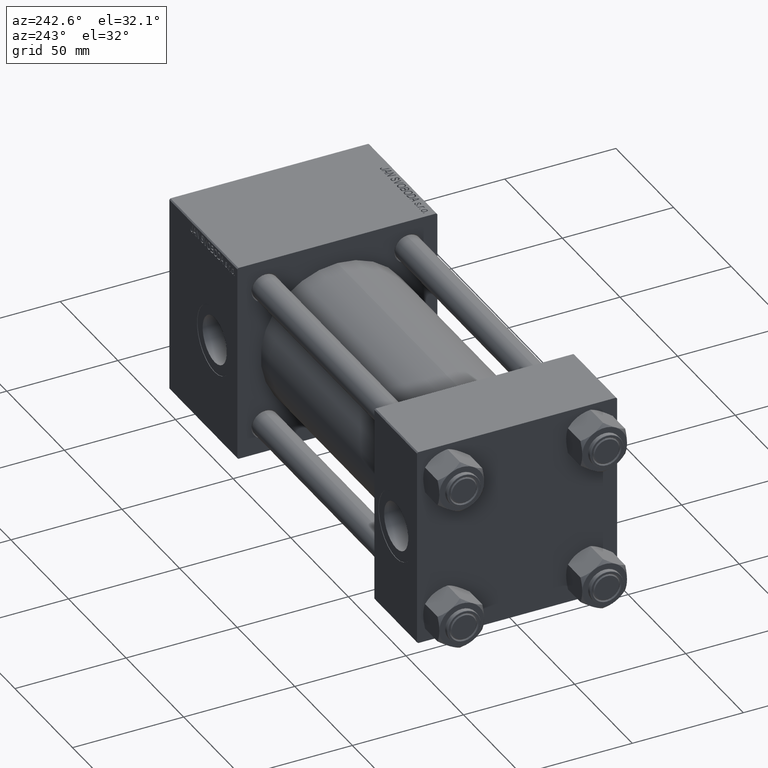
[diagram: clean part render]
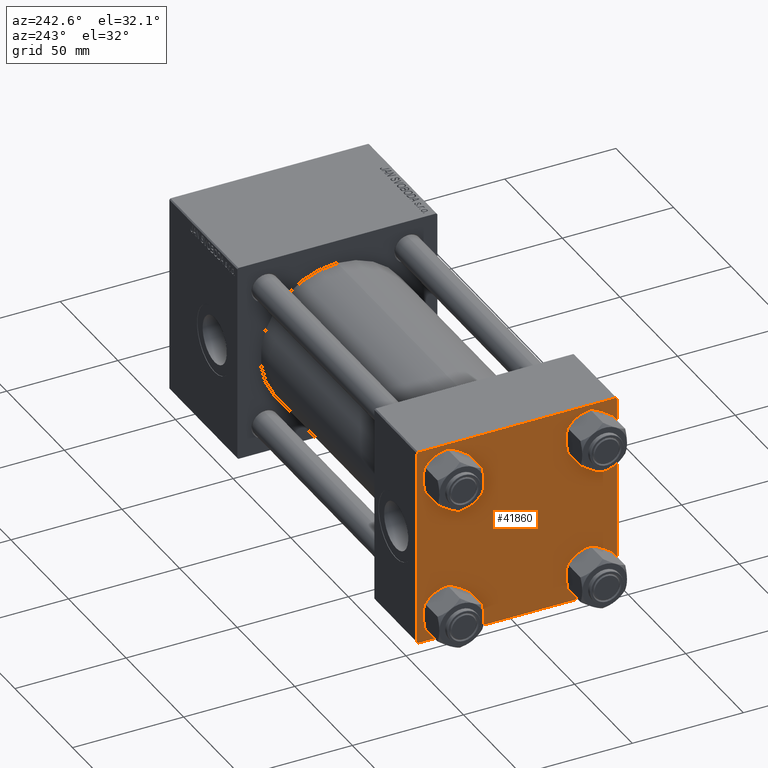
[diagram: same view with one face highlighted and labeled with its STEP entity id]
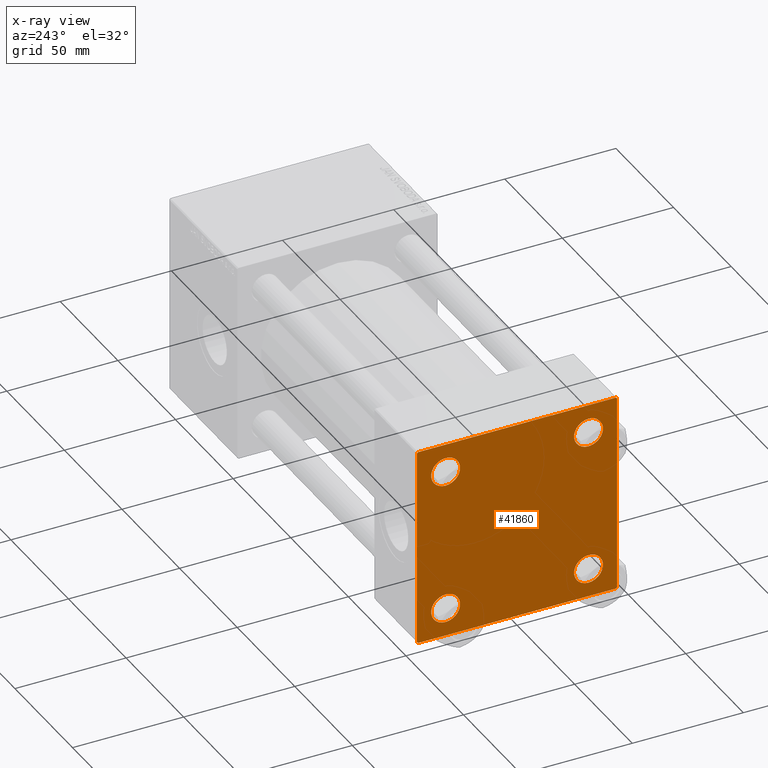
[diagram: x-ray of the same camera — body ghosted, the highlighted face saturated]
A machine part, auxiliary view. The second image highlights one B-rep face of the part: STEP entity #41860.
The next image is the same camera in x-ray: the body ghosted, the highlighted face saturated — about 0% of this face is hidden behind the body in this view.
In plain terms, the highlighted planar face has unit normal (-1, 0, 0).
Its self-contained STEP definition (entity closure, byte-faithful):
#225 = CARTESIAN_POINT ( 'NONE',  ( -0.000000000000000000, -44.75000000000029843, 44.74999999999967315 ) ) ;
#477 = LINE ( 'NONE', #225, #4762 ) ;
#1149 = ORIENTED_EDGE ( 'NONE', *, *, #15127, .T. ) ;
#1425 = CARTESIAN_POINT ( 'NONE',  ( 0.000000000000000000, -32.14999999999997726, 38.65000000000003411 ) ) ;
#1450 = VERTEX_POINT ( 'NONE', #20752 ) ;
#1795 = VERTEX_POINT ( 'NONE', #12779 ) ;
#2357 = LINE ( 'NONE', #41945, #30639 ) ;
#2468 = CARTESIAN_POINT ( 'NONE',  ( 0.000000000000000000, -32.14999999999997726, 25.64999999999999147 ) ) ;
#2546 = EDGE_LOOP ( 'NONE', ( #32257, #27598 ) ) ;
#3601 = CARTESIAN_POINT ( 'NONE',  ( 0.000000000000000000, 44.99999999999998579, -44.99999999999998579 ) ) ;
#4218 = EDGE_LOOP ( 'NONE', ( #35627, #26943 ) ) ;
#4762 = VECTOR ( 'NONE', #19000, 1000.000000000000114 ) ;
#5049 = AXIS2_PLACEMENT_3D ( 'NONE', #26554, #34918, #7756 ) ;
#5235 = EDGE_CURVE ( 'NONE', #39679, #13844, #45253, .T. ) ;
#5574 = EDGE_CURVE ( 'NONE', #1795, #26309, #16720, .T. ) ;
#5720 = CIRCLE ( 'NONE', #6511, 6.499999999999977796 ) ;
#6083 = CIRCLE ( 'NONE', #38504, 6.499999999999977796 ) ;
#6511 = AXIS2_PLACEMENT_3D ( 'NONE', #24012, #43053, #34676 ) ;
#6610 = EDGE_CURVE ( 'NONE', #24822, #27007, #37839, .T. ) ;
#6813 = VERTEX_POINT ( 'NONE', #28364 ) ;
#7091 = DIRECTION ( 'NONE',  ( 1.000000000000000000, -0.000000000000000000, 0.000000000000000000 ) ) ;
#7431 = DIRECTION ( 'NONE',  ( 0.000000000000000000, -1.000000000000000000, -1.541976423090495633E-16 ) ) ;
#7756 = DIRECTION ( 'NONE',  ( -0.000000000000000000, 0.000000000000000000, 1.000000000000000000 ) ) ;
#8008 = CARTESIAN_POINT ( 'NONE',  ( 0.000000000000000000, 32.14999999999999147, 32.15000000000000568 ) ) ;
#8248 = CIRCLE ( 'NONE', #20408, 6.500000000000019540 ) ;
#8293 = EDGE_LOOP ( 'NONE', ( #19466, #20123, #48738, #15389, #23001, #48381, #29393, #8913 ) ) ;
#8513 = EDGE_CURVE ( 'NONE', #14420, #28642, #30611, .T. ) ;
#8656 = VERTEX_POINT ( 'NONE', #25932 ) ;
#8913 = ORIENTED_EDGE ( 'NONE', *, *, #26331, .T. ) ;
#10425 = DIRECTION ( 'NONE',  ( 1.000000000000000000, -0.000000000000000000, 0.000000000000000000 ) ) ;
#10456 = CARTESIAN_POINT ( 'NONE',  ( 0.000000000000000000, 44.99999999999998579, 45.00000000000001421 ) ) ;
#10793 = EDGE_CURVE ( 'NONE', #8656, #17952, #31513, .T. ) ;
#10971 = DIRECTION ( 'NONE',  ( 0.000000000000000000, 0.000000000000000000, 1.000000000000000000 ) ) ;
#11302 = FACE_BOUND ( 'NONE', #2546, .T. ) ;
#11933 = CARTESIAN_POINT ( 'NONE',  ( 0.000000000000000000, 32.14999999999999147, 25.65000000000002700 ) ) ;
#12049 = ORIENTED_EDGE ( 'NONE', *, *, #10793, .T. ) ;
#12059 = DIRECTION ( 'NONE',  ( 0.000000000000000000, 0.000000000000000000, 1.000000000000000000 ) ) ;
#12062 = FACE_BOUND ( 'NONE', #4218, .T. ) ;
#12158 = DIRECTION ( 'NONE',  ( 0.000000000000000000, 0.000000000000000000, 1.000000000000000000 ) ) ;
#12444 = LINE ( 'NONE', #27434, #43061 ) ;
#12446 = VECTOR ( 'NONE', #7431, 1000.000000000000000 ) ;
#12779 = CARTESIAN_POINT ( 'NONE',  ( 0.000000000000000000, 32.14999999999999147, -25.65000000000002700 ) ) ;
#13844 = VERTEX_POINT ( 'NONE', #19481 ) ;
#14406 = AXIS2_PLACEMENT_3D ( 'NONE', #8008, #31369, #12059 ) ;
#14420 = VERTEX_POINT ( 'NONE', #11933 ) ;
#15127 = EDGE_CURVE ( 'NONE', #28642, #14420, #5720, .T. ) ;
#15327 = VECTOR ( 'NONE', #43786, 1000.000000000000114 ) ;
#15389 = ORIENTED_EDGE ( 'NONE', *, *, #20017, .T. ) ;
#15921 = VECTOR ( 'NONE', #41445, 1000.000000000000000 ) ;
#15969 = DIRECTION ( 'NONE',  ( 1.000000000000000000, -0.000000000000000000, 0.000000000000000000 ) ) ;
#16127 = PLANE ( 'NONE',  #5049 ) ;
#16207 = CARTESIAN_POINT ( 'NONE',  ( 0.000000000000000000, -32.14999999999997726, 32.15000000000001279 ) ) ;
#16540 = EDGE_CURVE ( 'NONE', #26309, #1795, #19489, .T. ) ;
#16720 = CIRCLE ( 'NONE', #37803, 6.499999999999977796 ) ;
#17932 = DIRECTION ( 'NONE',  ( 0.000000000000000000, 0.000000000000000000, -1.000000000000000000 ) ) ;
#17952 = VERTEX_POINT ( 'NONE', #27551 ) ;
#17980 = DIRECTION ( 'NONE',  ( 1.000000000000000000, -0.000000000000000000, 0.000000000000000000 ) ) ;
#19000 = DIRECTION ( 'NONE',  ( -0.000000000000000000, 0.7071067811865425767, 0.7071067811865524577 ) ) ;
#19466 = ORIENTED_EDGE ( 'NONE', *, *, #36925, .T. ) ;
#19481 = CARTESIAN_POINT ( 'NONE',  ( 0.000000000000000000, -44.49999999999995737, 45.00000000000000000 ) ) ;
#19489 = CIRCLE ( 'NONE', #20333, 6.499999999999977796 ) ;
#20017 = EDGE_CURVE ( 'NONE', #47392, #21431, #12444, .T. ) ;
#20123 = ORIENTED_EDGE ( 'NONE', *, *, #30502, .T. ) ;
#20333 = AXIS2_PLACEMENT_3D ( 'NONE', #32730, #17980, #21776 ) ;
#20408 = AXIS2_PLACEMENT_3D ( 'NONE', #16207, #28153, #35504 ) ;
#20752 = CARTESIAN_POINT ( 'NONE',  ( 0.000000000000000000, 44.99999999999998579, -44.49999999999995737 ) ) ;
#20955 = AXIS2_PLACEMENT_3D ( 'NONE', #21608, #10425, #48299 ) ;
#21280 = EDGE_CURVE ( 'NONE', #27007, #24822, #8248, .T. ) ;
#21431 = VERTEX_POINT ( 'NONE', #25333 ) ;
#21608 = CARTESIAN_POINT ( 'NONE',  ( 0.000000000000000000, -32.14999999999997726, -32.15000000000001279 ) ) ;
#21776 = DIRECTION ( 'NONE',  ( 0.000000000000000000, 0.000000000000000000, 1.000000000000000000 ) ) ;
#22644 = DIRECTION ( 'NONE',  ( 1.000000000000000000, -0.000000000000000000, 0.000000000000000000 ) ) ;
#22896 = CARTESIAN_POINT ( 'NONE',  ( 0.000000000000000000, -44.49999999999995737, -45.00000000000000000 ) ) ;
#23001 = ORIENTED_EDGE ( 'NONE', *, *, #30745, .F. ) ;
#23861 = EDGE_CURVE ( 'NONE', #32032, #47392, #27221, .T. ) ;
#24012 = CARTESIAN_POINT ( 'NONE',  ( 0.000000000000000000, 32.14999999999999147, 32.15000000000000568 ) ) ;
#24272 = CARTESIAN_POINT ( 'NONE',  ( 0.000000000000000000, 32.14999999999999147, 38.64999999999999147 ) ) ;
#24822 = VERTEX_POINT ( 'NONE', #2468 ) ;
#24947 = ORIENTED_EDGE ( 'NONE', *, *, #8513, .T. ) ;
#24986 = CARTESIAN_POINT ( 'NONE',  ( 0.000000000000000000, 44.74999999999998579, -44.74999999999998579 ) ) ;
#25333 = CARTESIAN_POINT ( 'NONE',  ( 0.000000000000000000, -45.00000000000000000, -44.49999999999995737 ) ) ;
#25932 = CARTESIAN_POINT ( 'NONE',  ( 0.000000000000000000, -32.14999999999997726, -25.65000000000003411 ) ) ;
#26053 = CARTESIAN_POINT ( 'NONE',  ( 0.000000000000000000, 44.99999999999998579, 45.00000000000001421 ) ) ;
#26309 = VERTEX_POINT ( 'NONE', #44027 ) ;
#26331 = EDGE_CURVE ( 'NONE', #39679, #40680, #2357, .T. ) ;
#26554 = CARTESIAN_POINT ( 'NONE',  ( 0.000000000000000000, 0.000000000000000000, 0.000000000000000000 ) ) ;
#26710 = CARTESIAN_POINT ( 'NONE',  ( 0.000000000000000000, -32.14999999999997726, -32.15000000000001279 ) ) ;
#26943 = ORIENTED_EDGE ( 'NONE', *, *, #16540, .T. ) ;
#27007 = VERTEX_POINT ( 'NONE', #1425 ) ;
#27049 = FACE_BOUND ( 'NONE', #47607, .T. ) ;
#27221 = LINE ( 'NONE', #3601, #12446 ) ;
#27434 = CARTESIAN_POINT ( 'NONE',  ( 0.000000000000000000, -44.74999999999998579, -44.74999999999998579 ) ) ;
#27551 = CARTESIAN_POINT ( 'NONE',  ( 0.000000000000000000, -32.14999999999997726, -38.64999999999999147 ) ) ;
#27598 = ORIENTED_EDGE ( 'NONE', *, *, #6610, .T. ) ;
#28153 = DIRECTION ( 'NONE',  ( 1.000000000000000000, -0.000000000000000000, 0.000000000000000000 ) ) ;
#28251 = LINE ( 'NONE', #47297, #49417 ) ;
#28364 = CARTESIAN_POINT ( 'NONE',  ( 0.000000000000000000, -45.00000000000000711, 44.49999999999997158 ) ) ;
#28642 = VERTEX_POINT ( 'NONE', #24272 ) ;
#28990 = AXIS2_PLACEMENT_3D ( 'NONE', #35771, #15969, #12158 ) ;
#29384 = EDGE_CURVE ( 'NONE', #6813, #13844, #477, .T. ) ;
#29393 = ORIENTED_EDGE ( 'NONE', *, *, #5235, .F. ) ;
#29758 = EDGE_LOOP ( 'NONE', ( #1149, #24947 ) ) ;
#30502 = EDGE_CURVE ( 'NONE', #1450, #32032, #40224, .T. ) ;
#30611 = CIRCLE ( 'NONE', #14406, 6.499999999999977796 ) ;
#30639 = VECTOR ( 'NONE', #40953, 1000.000000000000114 ) ;
#30745 = EDGE_CURVE ( 'NONE', #6813, #21431, #28251, .T. ) ;
#31118 = FACE_BOUND ( 'NONE', #29758, .T. ) ;
#31369 = DIRECTION ( 'NONE',  ( 1.000000000000000000, -0.000000000000000000, 0.000000000000000000 ) ) ;
#31513 = CIRCLE ( 'NONE', #20955, 6.499999999999977796 ) ;
#32032 = VERTEX_POINT ( 'NONE', #40100 ) ;
#32257 = ORIENTED_EDGE ( 'NONE', *, *, #21280, .T. ) ;
#32730 = CARTESIAN_POINT ( 'NONE',  ( 0.000000000000000000, 32.14999999999999147, -32.15000000000000568 ) ) ;
#34008 = CARTESIAN_POINT ( 'NONE',  ( 0.000000000000000000, 32.14999999999999147, -32.15000000000000568 ) ) ;
#34676 = DIRECTION ( 'NONE',  ( 0.000000000000000000, 0.000000000000000000, 1.000000000000000000 ) ) ;
#34918 = DIRECTION ( 'NONE',  ( -1.000000000000000000, 0.000000000000000000, -0.000000000000000000 ) ) ;
#35504 = DIRECTION ( 'NONE',  ( 0.000000000000000000, 0.000000000000000000, 1.000000000000000000 ) ) ;
#35553 = DIRECTION ( 'NONE',  ( 0.000000000000000000, -0.7071067811865474617, 0.7071067811865474617 ) ) ;
#35627 = ORIENTED_EDGE ( 'NONE', *, *, #5574, .T. ) ;
#35771 = CARTESIAN_POINT ( 'NONE',  ( 0.000000000000000000, -32.14999999999997726, 32.15000000000001279 ) ) ;
#36925 = EDGE_CURVE ( 'NONE', #40680, #1450, #46091, .T. ) ;
#37206 = CARTESIAN_POINT ( 'NONE',  ( 0.000000000000000000, 44.49999999999998579, 45.00000000000001421 ) ) ;
#37803 = AXIS2_PLACEMENT_3D ( 'NONE', #34008, #7091, #46187 ) ;
#37839 = CIRCLE ( 'NONE', #28990, 6.500000000000019540 ) ;
#38153 = VECTOR ( 'NONE', #17932, 1000.000000000000000 ) ;
#38504 = AXIS2_PLACEMENT_3D ( 'NONE', #26710, #22644, #10971 ) ;
#39679 = VERTEX_POINT ( 'NONE', #37206 ) ;
#40100 = CARTESIAN_POINT ( 'NONE',  ( 0.000000000000000000, 44.49999999999998579, -44.99999999999998579 ) ) ;
#40224 = LINE ( 'NONE', #24986, #15327 ) ;
#40680 = VERTEX_POINT ( 'NONE', #42642 ) ;
#40953 = DIRECTION ( 'NONE',  ( 0.000000000000000000, 0.7071067811865474617, -0.7071067811865474617 ) ) ;
#41445 = DIRECTION ( 'NONE',  ( 0.000000000000000000, -1.000000000000000000, -1.541976423090495387E-16 ) ) ;
#41860 = ADVANCED_FACE ( 'NONE', ( #11302, #27049, #12062, #31118, #47125 ), #16127, .T. ) ;
#41945 = CARTESIAN_POINT ( 'NONE',  ( 0.000000000000000000, 44.74999999999999289, 44.74999999999999289 ) ) ;
#42642 = CARTESIAN_POINT ( 'NONE',  ( 0.000000000000000000, 44.99999999999998579, 44.50000000000001421 ) ) ;
#43053 = DIRECTION ( 'NONE',  ( 1.000000000000000000, -0.000000000000000000, 0.000000000000000000 ) ) ;
#43061 = VECTOR ( 'NONE', #35553, 1000.000000000000114 ) ;
#43218 = DIRECTION ( 'NONE',  ( 0.000000000000000000, 7.709882115452476934E-17, -1.000000000000000000 ) ) ;
#43786 = DIRECTION ( 'NONE',  ( -0.000000000000000000, -0.7071067811865474617, -0.7071067811865474617 ) ) ;
#44027 = CARTESIAN_POINT ( 'NONE',  ( 0.000000000000000000, 32.14999999999999147, -38.64999999999998437 ) ) ;
#45253 = LINE ( 'NONE', #10456, #15921 ) ;
#46091 = LINE ( 'NONE', #26053, #38153 ) ;
#46187 = DIRECTION ( 'NONE',  ( 0.000000000000000000, 0.000000000000000000, 1.000000000000000000 ) ) ;
#46931 = ORIENTED_EDGE ( 'NONE', *, *, #48739, .T. ) ;
#47125 = FACE_OUTER_BOUND ( 'NONE', #8293, .T. ) ;
#47297 = CARTESIAN_POINT ( 'NONE',  ( 0.000000000000000000, -45.00000000000000711, 45.00000000000000000 ) ) ;
#47392 = VERTEX_POINT ( 'NONE', #22896 ) ;
#47607 = EDGE_LOOP ( 'NONE', ( #12049, #46931 ) ) ;
#48299 = DIRECTION ( 'NONE',  ( 0.000000000000000000, 0.000000000000000000, 1.000000000000000000 ) ) ;
#48381 = ORIENTED_EDGE ( 'NONE', *, *, #29384, .T. ) ;
#48738 = ORIENTED_EDGE ( 'NONE', *, *, #23861, .T. ) ;
#48739 = EDGE_CURVE ( 'NONE', #17952, #8656, #6083, .T. ) ;
#49417 = VECTOR ( 'NONE', #43218, 1000.000000000000000 ) ;